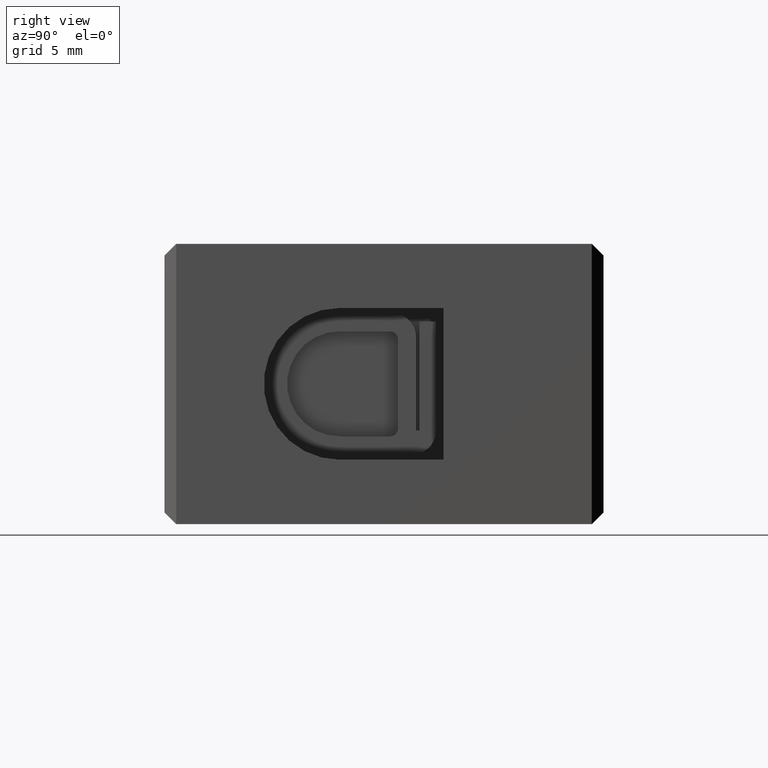
[diagram: clean part render]
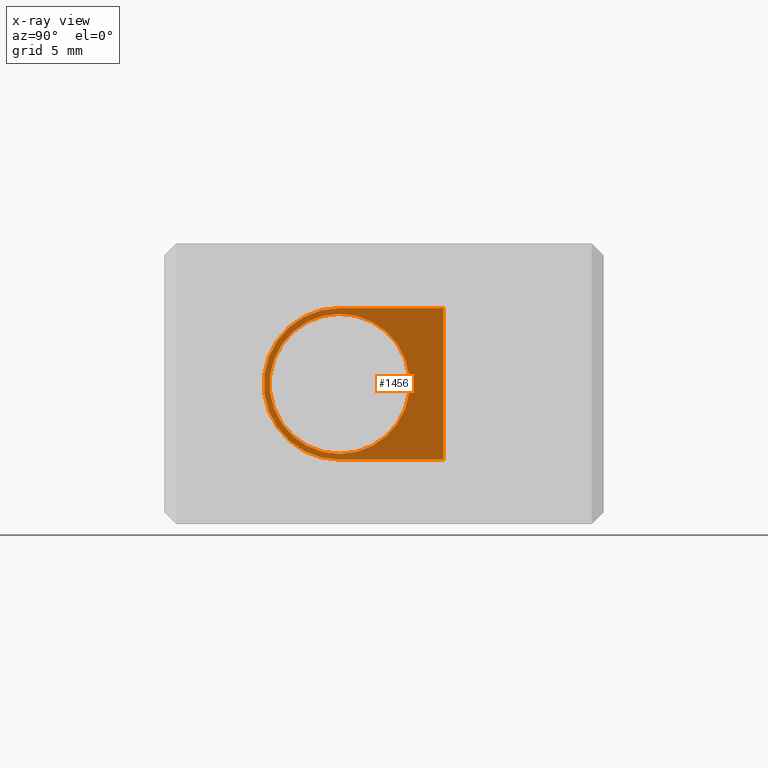
[diagram: x-ray — body ghosted, one internal face saturated and labeled with its STEP entity id]
A machine part, right view, then the same camera in x-ray: the body is ghosted and one INTERNAL B-rep face — a face not visible from any outside direction — is saturated and labeled: STEP entity #1456.
In plain terms, the highlighted planar face has unit normal (-1, 0, 0).
Its self-contained STEP definition (entity closure, byte-faithful):
#134 = EDGE_LOOP ( 'NONE', ( #640, #652, #654, #675 ) ) ;
#144 = EDGE_LOOP ( 'NONE', ( #673, #676 ) ) ;
#281 = VERTEX_POINT ( 'NONE', #812 ) ;
#286 = VERTEX_POINT ( 'NONE', #841 ) ;
#287 = VERTEX_POINT ( 'NONE', #862 ) ;
#292 = VERTEX_POINT ( 'NONE', #847 ) ;
#295 = VERTEX_POINT ( 'NONE', #867 ) ;
#296 = VERTEX_POINT ( 'NONE', #857 ) ;
#640 = ORIENTED_EDGE ( 'NONE', *, *, #1390, .F. ) ;
#652 = ORIENTED_EDGE ( 'NONE', *, *, #1347, .F. ) ;
#654 = ORIENTED_EDGE ( 'NONE', *, *, #1380, .F. ) ;
#673 = ORIENTED_EDGE ( 'NONE', *, *, #1356, .T. ) ;
#675 = ORIENTED_EDGE ( 'NONE', *, *, #1317, .F. ) ;
#676 = ORIENTED_EDGE ( 'NONE', *, *, #1306, .T. ) ;
#812 = CARTESIAN_POINT ( 'NONE',  ( 2.800000000000000300, 7.500000000000000000, -9.249999999999996400 ) ) ;
#841 = CARTESIAN_POINT ( 'NONE',  ( 2.800000000000000300, 11.95000000000000100, -2.749999999999997300 ) ) ;
#847 = CARTESIAN_POINT ( 'NONE',  ( 2.800000000000000300, 11.95000000000000100, -9.249999999999996400 ) ) ;
#857 = CARTESIAN_POINT ( 'NONE',  ( 2.799999999999999800, 7.500000000000000000, -8.999999999999998200 ) ) ;
#862 = CARTESIAN_POINT ( 'NONE',  ( 2.800000000000000300, 7.500000000000000000, -2.749999999999997300 ) ) ;
#867 = CARTESIAN_POINT ( 'NONE',  ( 2.799999999999999800, 7.500000000000000000, -2.999999999999996000 ) ) ;
#918 = VECTOR ( 'NONE', #2029, 1000.000000000000000 ) ;
#967 = AXIS2_PLACEMENT_3D ( 'NONE', #2273, #2267, #2226 ) ;
#1155 = CIRCLE ( 'NONE', #1185, 3.000000000000000400 ) ;
#1175 = VECTOR ( 'NONE', #1811, 1000.000000000000000 ) ;
#1185 = AXIS2_PLACEMENT_3D ( 'NONE', #1798, #1790, #1769 ) ;
#1229 = VECTOR ( 'NONE', #1923, 1000.000000000000000 ) ;
#1239 = CIRCLE ( 'NONE', #1252, 3.000000000000000400 ) ;
#1249 = CIRCLE ( 'NONE', #1250, 3.249999999999999600 ) ;
#1250 = AXIS2_PLACEMENT_3D ( 'NONE', #1985, #1999, #1995 ) ;
#1252 = AXIS2_PLACEMENT_3D ( 'NONE', #1914, #1913, #1915 ) ;
#1306 = EDGE_CURVE ( 'NONE', #296, #295, #1155, .T. ) ;
#1317 = EDGE_CURVE ( 'NONE', #292, #281, #1785, .T. ) ;
#1347 = EDGE_CURVE ( 'NONE', #287, #286, #1846, .T. ) ;
#1356 = EDGE_CURVE ( 'NONE', #295, #296, #1239, .T. ) ;
#1380 = EDGE_CURVE ( 'NONE', #281, #287, #1249, .T. ) ;
#1390 = EDGE_CURVE ( 'NONE', #286, #292, #2049, .T. ) ;
#1456 = ADVANCED_FACE ( 'NONE', ( #2264, #2258 ), #2227, .F. ) ;
#1769 = DIRECTION ( 'NONE',  ( 0.0000000000000000000, 0.0000000000000000000, 1.000000000000000000 ) ) ;
#1785 = LINE ( 'NONE', #1788, #1175 ) ;
#1788 = CARTESIAN_POINT ( 'NONE',  ( 2.799999999999999800, 7.500000000000000000, -9.249999999999996400 ) ) ;
#1790 = DIRECTION ( 'NONE',  ( -1.000000000000000000, -0.0000000000000000000, -0.0000000000000000000 ) ) ;
#1798 = CARTESIAN_POINT ( 'NONE',  ( 2.799999999999999800, 7.500000000000000000, -5.999999999999996400 ) ) ;
#1811 = DIRECTION ( 'NONE',  ( -0.0000000000000000000, -1.000000000000000000, 0.0000000000000000000 ) ) ;
#1846 = LINE ( 'NONE', #1847, #1229 ) ;
#1847 = CARTESIAN_POINT ( 'NONE',  ( 2.799999999999999800, 7.500000000000000000, -2.749999999999997300 ) ) ;
#1913 = DIRECTION ( 'NONE',  ( -1.000000000000000000, -0.0000000000000000000, -0.0000000000000000000 ) ) ;
#1914 = CARTESIAN_POINT ( 'NONE',  ( 2.799999999999999800, 7.500000000000000000, -5.999999999999996400 ) ) ;
#1915 = DIRECTION ( 'NONE',  ( 0.0000000000000000000, 0.0000000000000000000, 1.000000000000000000 ) ) ;
#1923 = DIRECTION ( 'NONE',  ( 0.0000000000000000000, 1.000000000000000000, -0.0000000000000000000 ) ) ;
#1985 = CARTESIAN_POINT ( 'NONE',  ( 2.800000000000000300, 7.500000000000000000, -5.999999999999996400 ) ) ;
#1995 = DIRECTION ( 'NONE',  ( 0.0000000000000000000, 0.0000000000000000000, 1.000000000000000000 ) ) ;
#1999 = DIRECTION ( 'NONE',  ( -1.000000000000000000, -0.0000000000000000000, -0.0000000000000000000 ) ) ;
#2029 = DIRECTION ( 'NONE',  ( -0.0000000000000000000, -0.0000000000000000000, -1.000000000000000000 ) ) ;
#2049 = LINE ( 'NONE', #2056, #918 ) ;
#2056 = CARTESIAN_POINT ( 'NONE',  ( 2.799999999999999800, 11.95000000000000100, -5.999999999999996400 ) ) ;
#2226 = DIRECTION ( 'NONE',  ( 0.0000000000000000000, 0.0000000000000000000, 1.000000000000000000 ) ) ;
#2227 = PLANE ( 'NONE',  #967 ) ;
#2258 = FACE_BOUND ( 'NONE', #144, .T. ) ;
#2264 = FACE_OUTER_BOUND ( 'NONE', #134, .T. ) ;
#2267 = DIRECTION ( 'NONE',  ( -1.000000000000000000, 0.0000000000000000000, 0.0000000000000000000 ) ) ;
#2273 = CARTESIAN_POINT ( 'NONE',  ( 2.799999999999999800, 7.500000000000000000, -5.999999999999996400 ) ) ;